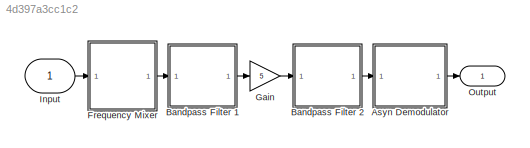
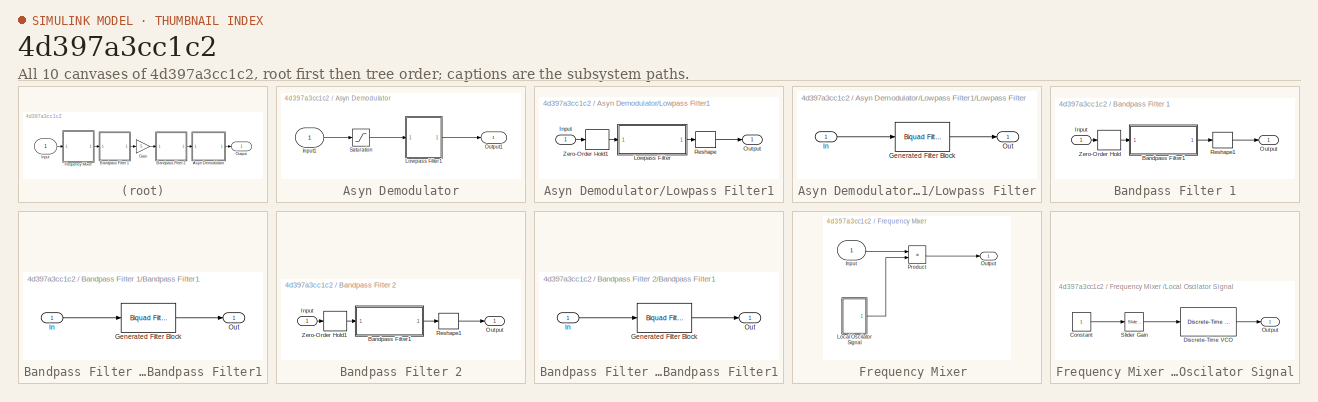
[diagram: thumbnail index - all 10 canvases of the model, root first then tree order]
MODEL slx_4d397a3cc1c2
KIND model
BLOCK [SubSystem] Asyn Demodulator
  Ports = [1, 1]
  RequestExecContextInheritance = off
BLOCK [Inport] Asyn Demodulator/Input1
  IconDisplay = Port number
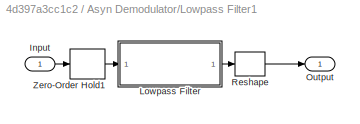
BLOCK [SubSystem] Asyn Demodulator/Lowpass Filter1
  Ports = [1, 1]
  RequestExecContextInheritance = off
BLOCK [Inport] Asyn Demodulator/Lowpass Filter1/Input
  IconDisplay = Port number
BLOCK [SubSystem] Asyn Demodulator/Lowpass Filter1/Lowpass Filter
  CopyFcn = fdesignblkfcn(gcbh, {'CopyFcn'});
  DialogController = fdesignblkfcn
  InitFcn = fdesignblkfcn(gcbh, {'InitFcn'});
  Ports = [1, 1]
  RequestExecContextInheritance = off
  UserDataPersistent = on
BLOCK [Reference] Asyn Demodulator/Lowpass Filter1/Lowpass Filter/Generated Filter Block  REF=dsparch4/Biquad Filter
  BiQuadCoeffs = [1.1139495474470017e-05 2.2278990948940034e-05 1.1139495474470017e-05 1 -1.9975472496899784 0.99760587630988296;1.708449290031526e-05 3.4168985800630521e-05 1.708449290031526e-05 1 -1.99387457640288 0.99393309523238282;2.1150286544110928e-05 4.2300573088221855e-05 2.1150286544110928e-05 1 -1.9905941002634866 0.99065252281330018;2.3741131754506419e-05 4.7482263509012838e-05 2.3741131754506419e-05 1...<+2357ch>
  CoeffSource = Specify via dialog
  FilterSource = Specify via dialog
  IC = 0
  ICden = 0
  ICnum = 0
  IIRFiltStruct = Direct form II
  InputProcessing = Columns as channels (frame based)
  LockScale = off
  Ports = [1, 1]
  ScaleValueMode = Specify via input port (g)
  ScaleValues = [1.8320818000818615e-05;1;1;1;1;1;1;1;1;1;1;1;1;1;1;1;1;1;1;1;1;1;1;1;1;1]
  SourceBlock = dsparch4/Biquad Filter
  SourceType = Biquad Filter
  Tag = BlockMethodSubSystem
  UserDataPersistent = on
  a0Flag = Warning
  accumFracLength = 30
  accumMode = Same as product output
  accumWordLength = 32
  allowOverrides = on
  denAccumFracLength = 30
  denProdOutputFracLength = 30
  dfiltObjectName = dfilt.df2tsos([1 0.3 0.4],[1 0.1 0.2])
  firstCoeffFracLength = 15
  firstCoeffMode = Same word length as input
  firstCoeffWordLength = 16
  memoryFracLength = 15
  memoryMode = Same as accumulator
  memoryWordLength = 16
  multiplicandFracLength = 30
  multiplicandMode = Same as output
  multiplicandWordLength = 32
  optimizeScaleValues = off
  outputFracLength = 15
  outputMode = Same as accumulator
  outputWordLength = 16
  overflowMode = off
  prodOutputFracLength = 30
  prodOutputMode = Same as input
  prodOutputWordLength = 32
  roundingMode = Floor
  scaleValueFracLength = 14
  secondCoeffFracLength = 15
  secondCoeffMode = Same as numerator
  secondCoeffWordLength = 16
  secondMemoryFracLength = 15
  stageInputFracLength = 15
  stageInputMode = Same as input
  stageInputWordLength = 16
  stageOutputFracLength = 15
  stageOutputMode = Same as section input
  stageOutputWordLength = 16
BLOCK [Inport] Asyn Demodulator/Lowpass Filter1/Lowpass Filter/In
  IconDisplay = Port number
BLOCK [Outport] Asyn Demodulator/Lowpass Filter1/Lowpass Filter/Out
  IconDisplay = Port number
BLOCK [Outport] Asyn Demodulator/Lowpass Filter1/Output
  IconDisplay = Port number
BLOCK [Reshape] Asyn Demodulator/Lowpass Filter1/Reshape
  Ports = [1, 1]
BLOCK [ZeroOrderHold] Asyn Demodulator/Lowpass Filter1/Zero-Order Hold1
  SampleTime = -1
BLOCK [Outport] Asyn Demodulator/Output1
  IconDisplay = Port number
BLOCK [Saturate] Asyn Demodulator/Saturation
  InputPortMap = u0
  LowerLimit = 0
  Ports = [1, 1]
  UpperLimit = inf
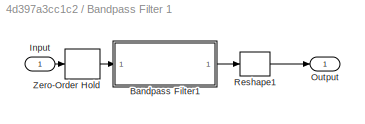
BLOCK [SubSystem] Bandpass Filter 1
  Ports = [1, 1]
  RequestExecContextInheritance = off
BLOCK [SubSystem] Bandpass Filter 1/Bandpass Filter1
  CopyFcn = fdesignblkfcn(gcbh, {'CopyFcn'});
  DialogController = fdesignblkfcn
  InitFcn = fdesignblkfcn(gcbh, {'InitFcn'});
  Ports = [1, 1]
  RequestExecContextInheritance = off
  UserDataPersistent = on
BLOCK [Reference] Bandpass Filter 1/Bandpass Filter1/Generated Filter Block  REF=dsparch4/Biquad Filter
  BiQuadCoeffs = [0.01013958648634297 0 -0.01013958648634297 1 -1.6618133812024951 0.98627046054740486;0.0025493781187891492 0 -0.0025493781187891492 1 -1.6514591991218408 0.98607730419032968;0.016304485317952876 0 -0.016304485317952876 1 -1.6744504392878072 0.99677925049276372;0.010019474414157988 0 -0.010019474414157988 1 -1.6562936076737262 0.99669840495107032;0.011567698875754661 0 -0.011567698875754661 1 -1.6...<+297ch>
  CoeffSource = Specify via dialog
  FilterSource = Specify via dialog
  IC = 0
  ICden = 0
  ICnum = 0
  IIRFiltStruct = Direct form II
  InputProcessing = Columns as channels (frame based)
  LockScale = off
  Ports = [1, 1]
  ScaleValueMode = Specify via input port (g)
  ScaleValues = [0.0075209697231768506;1;1;1;1;1;1;1;1]
  SourceBlock = dsparch4/Biquad Filter
  SourceType = Biquad Filter
  Tag = BlockMethodSubSystem
  UserDataPersistent = on
  a0Flag = Warning
  accumFracLength = 30
  accumMode = Same as product output
  accumWordLength = 32
  allowOverrides = on
  denAccumFracLength = 30
  denProdOutputFracLength = 30
  dfiltObjectName = dfilt.df2tsos([1 0.3 0.4],[1 0.1 0.2])
  firstCoeffFracLength = 15
  firstCoeffMode = Same word length as input
  firstCoeffWordLength = 16
  memoryFracLength = 15
  memoryMode = Same as accumulator
  memoryWordLength = 16
  multiplicandFracLength = 30
  multiplicandMode = Same as output
  multiplicandWordLength = 32
  optimizeScaleValues = off
  outputFracLength = 15
  outputMode = Same as accumulator
  outputWordLength = 16
  overflowMode = off
  prodOutputFracLength = 30
  prodOutputMode = Same as input
  prodOutputWordLength = 32
  roundingMode = Floor
  scaleValueFracLength = 14
  secondCoeffFracLength = 15
  secondCoeffMode = Same as numerator
  secondCoeffWordLength = 16
  secondMemoryFracLength = 15
  stageInputFracLength = 15
  stageInputMode = Same as input
  stageInputWordLength = 16
  stageOutputFracLength = 15
  stageOutputMode = Same as section input
  stageOutputWordLength = 16
BLOCK [Inport] Bandpass Filter 1/Bandpass Filter1/In
  IconDisplay = Port number
BLOCK [Outport] Bandpass Filter 1/Bandpass Filter1/Out
  IconDisplay = Port number
BLOCK [Inport] Bandpass Filter 1/Input
  IconDisplay = Port number
BLOCK [Outport] Bandpass Filter 1/Output
  IconDisplay = Port number
BLOCK [Reshape] Bandpass Filter 1/Reshape1
  Ports = [1, 1]
BLOCK [ZeroOrderHold] Bandpass Filter 1/Zero-Order Hold
  SampleTime = -1
BLOCK [SubSystem] Bandpass Filter 2
  Ports = [1, 1]
  RequestExecContextInheritance = off
BLOCK [SubSystem] Bandpass Filter 2/Bandpass Filter1
  CopyFcn = fdesignblkfcn(gcbh, {'CopyFcn'});
  DialogController = fdesignblkfcn
  InitFcn = fdesignblkfcn(gcbh, {'InitFcn'});
  Ports = [1, 1]
  RequestExecContextInheritance = off
  UserDataPersistent = on
BLOCK [Reference] Bandpass Filter 2/Bandpass Filter1/Generated Filter Block  REF=dsparch4/Biquad Filter
  BiQuadCoeffs = [0.01013958648634297 0 -0.01013958648634297 1 -1.6618133812024951 0.98627046054740486;0.0025493781187891492 0 -0.0025493781187891492 1 -1.6514591991218408 0.98607730419032968;0.016304485317952876 0 -0.016304485317952876 1 -1.6744504392878072 0.99677925049276372;0.010019474414157988 0 -0.010019474414157988 1 -1.6562936076737262 0.99669840495107032;0.011567698875754661 0 -0.011567698875754661 1 -1.6...<+297ch>
  CoeffSource = Specify via dialog
  FilterSource = Specify via dialog
  IC = 0
  ICden = 0
  ICnum = 0
  IIRFiltStruct = Direct form II
  InputProcessing = Columns as channels (frame based)
  LockScale = off
  Ports = [1, 1]
  ScaleValueMode = Specify via input port (g)
  ScaleValues = [0.0075209697231768506;1;1;1;1;1;1;1;1]
  SourceBlock = dsparch4/Biquad Filter
  SourceType = Biquad Filter
  Tag = BlockMethodSubSystem
  UserDataPersistent = on
  a0Flag = Warning
  accumFracLength = 30
  accumMode = Same as product output
  accumWordLength = 32
  allowOverrides = on
  denAccumFracLength = 30
  denProdOutputFracLength = 30
  dfiltObjectName = dfilt.df2tsos([1 0.3 0.4],[1 0.1 0.2])
  firstCoeffFracLength = 15
  firstCoeffMode = Same word length as input
  firstCoeffWordLength = 16
  memoryFracLength = 15
  memoryMode = Same as accumulator
  memoryWordLength = 16
  multiplicandFracLength = 30
  multiplicandMode = Same as output
  multiplicandWordLength = 32
  optimizeScaleValues = off
  outputFracLength = 15
  outputMode = Same as accumulator
  outputWordLength = 16
  overflowMode = off
  prodOutputFracLength = 30
  prodOutputMode = Same as input
  prodOutputWordLength = 32
  roundingMode = Floor
  scaleValueFracLength = 14
  secondCoeffFracLength = 15
  secondCoeffMode = Same as numerator
  secondCoeffWordLength = 16
  secondMemoryFracLength = 15
  stageInputFracLength = 15
  stageInputMode = Same as input
  stageInputWordLength = 16
  stageOutputFracLength = 15
  stageOutputMode = Same as section input
  stageOutputWordLength = 16
BLOCK [Inport] Bandpass Filter 2/Bandpass Filter1/In
  IconDisplay = Port number
BLOCK [Outport] Bandpass Filter 2/Bandpass Filter1/Out
  IconDisplay = Port number
BLOCK [Inport] Bandpass Filter 2/Input
  IconDisplay = Port number
BLOCK [Outport] Bandpass Filter 2/Output
  IconDisplay = Port number
BLOCK [Reshape] Bandpass Filter 2/Reshape1
  Ports = [1, 1]
BLOCK [ZeroOrderHold] Bandpass Filter 2/Zero-Order Hold1
  SampleTime = -1
BLOCK [SubSystem] Frequency Mixer 
  Ports = [1, 1]
  RequestExecContextInheritance = off
BLOCK [Inport] Frequency Mixer /Input
  IconDisplay = Port number
BLOCK [SubSystem] Frequency Mixer /Local Oscilator Signal
  Ports = [0, 1]
  RequestExecContextInheritance = off
BLOCK [Constant] Frequency Mixer /Local Oscilator Signal/Constant
BLOCK [Reference] Frequency Mixer /Local Oscilator Signal/Discrete-Time VCO  REF=commsynccomp2/Discrete-Time
VCO
  Ac = 1
  Fc = 0
  Kc = 1000
  Ph = 0
  Ports = [1, 1]
  SourceBlock = commsynccomp2/Discrete-Time\nVCO
  SourceType = Discrete-Time VCO
  ts = 1/5000000
BLOCK [Outport] Frequency Mixer /Local Oscilator Signal/Output
  IconDisplay = Port number
BLOCK [Reference] Frequency Mixer /Local Oscilator Signal/Slider Gain  REF=simulink/Math
Operations/Slider
Gain
  Ports = [1, 1]
  SourceBlock = simulink/Math\nOperations/Slider\nGain
  SourceType = Slider Gain
  gain = 1257
  high = 2070
  low = 1015
BLOCK [Outport] Frequency Mixer /Output
  IconDisplay = Port number
BLOCK [Product] Frequency Mixer /Product
  InputSameDT = off
  OutDataTypeStr = Inherit: Inherit via internal rule
  Ports = [2, 1]
  RndMeth = Floor
  SaturateOnIntegerOverflow = off
BLOCK [Gain] Gain
  Gain = 5
  OutDataTypeStr = Inherit: Inherit via internal rule
  ParamDataTypeStr = Inherit: Inherit via internal rule
  SaturateOnIntegerOverflow = off
BLOCK [Inport] Input
  IconDisplay = Port number
BLOCK [Outport] Output
  IconDisplay = Port number
LINE Asyn Demodulator/Input1:1 -> Asyn Demodulator/Saturation:1
LINE Asyn Demodulator/Lowpass Filter1/Input:1 -> Asyn Demodulator/Lowpass Filter1/Zero-Order Hold1:1
LINE Asyn Demodulator/Lowpass Filter1/Lowpass Filter:1 -> Asyn Demodulator/Lowpass Filter1/Reshape:1
LINE Asyn Demodulator/Lowpass Filter1/Reshape:1 -> Asyn Demodulator/Lowpass Filter1/Output:1
LINE Asyn Demodulator/Lowpass Filter1/Zero-Order Hold1:1 -> Asyn Demodulator/Lowpass Filter1/Lowpass Filter:1
LINE Asyn Demodulator/Lowpass Filter1:1 -> Asyn Demodulator/Output1:1
LINE Asyn Demodulator/Saturation:1 -> Asyn Demodulator/Lowpass Filter1:1
LINE Asyn Demodulator:1 -> Output:1
LINE Bandpass Filter 1/Bandpass Filter1:1 -> Bandpass Filter 1/Reshape1:1
LINE Bandpass Filter 1/Input:1 -> Bandpass Filter 1/Zero-Order Hold:1
LINE Bandpass Filter 1/Reshape1:1 -> Bandpass Filter 1/Output:1
LINE Bandpass Filter 1/Zero-Order Hold:1 -> Bandpass Filter 1/Bandpass Filter1:1
LINE Bandpass Filter 1:1 -> Gain:1
LINE Bandpass Filter 2/Bandpass Filter1:1 -> Bandpass Filter 2/Reshape1:1
LINE Bandpass Filter 2/Input:1 -> Bandpass Filter 2/Zero-Order Hold1:1
LINE Bandpass Filter 2/Reshape1:1 -> Bandpass Filter 2/Output:1
LINE Bandpass Filter 2/Zero-Order Hold1:1 -> Bandpass Filter 2/Bandpass Filter1:1
LINE Bandpass Filter 2:1 -> Asyn Demodulator:1
LINE Frequency Mixer /Input:1 -> Frequency Mixer /Product:1
LINE Frequency Mixer /Local Oscilator Signal/Constant:1 -> Frequency Mixer /Local Oscilator Signal/Slider Gain:1
LINE Frequency Mixer /Local Oscilator Signal/Discrete-Time VCO:1 -> Frequency Mixer /Local Oscilator Signal/Output:1
LINE Frequency Mixer /Local Oscilator Signal/Slider Gain:1 -> Frequency Mixer /Local Oscilator Signal/Discrete-Time VCO:1
LINE Frequency Mixer /Local Oscilator Signal:1 -> Frequency Mixer /Product:2
LINE Frequency Mixer /Product:1 -> Frequency Mixer /Output:1
LINE Frequency Mixer :1 -> Bandpass Filter 1:1
LINE Gain:1 -> Bandpass Filter 2:1
LINE Input:1 -> Frequency Mixer :1
